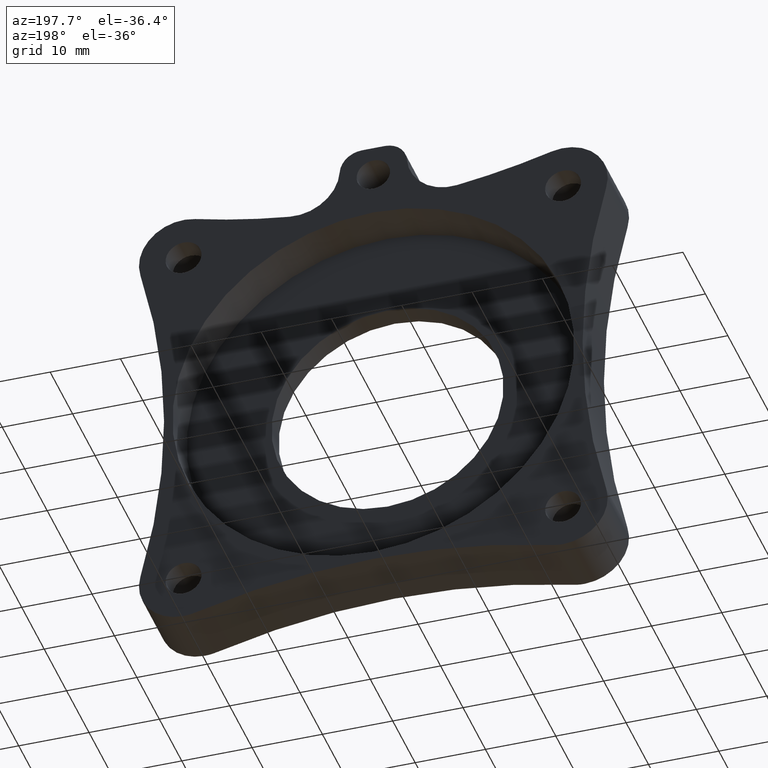
[diagram: clean part render]
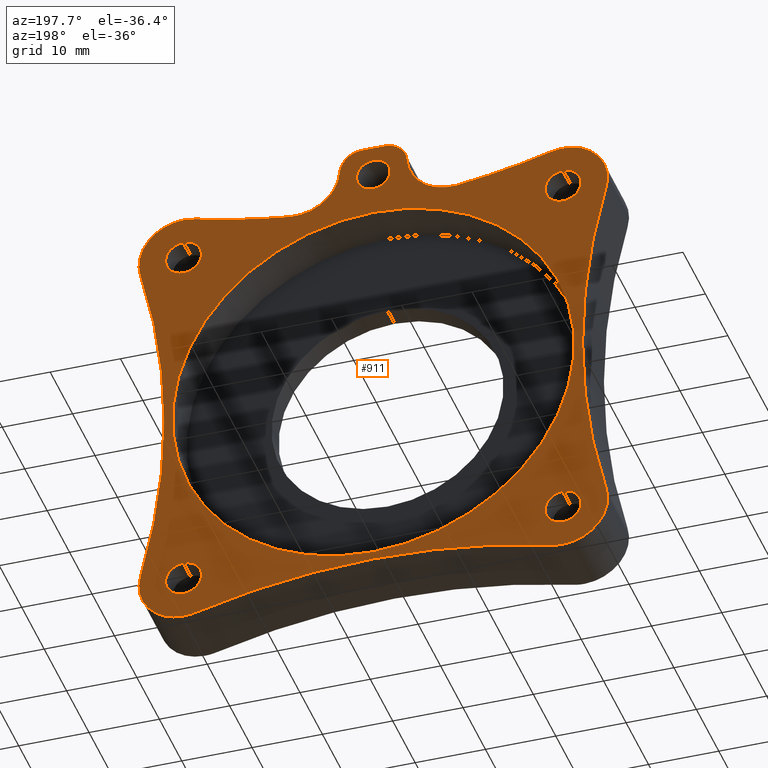
[diagram: same view with one face highlighted and labeled with its STEP entity id]
A machine part, auxiliary view. The second image highlights one B-rep face of the part: STEP entity #911.
In plain terms, the highlighted planar face has unit normal (0, -1, 0).
Its self-contained STEP definition (entity closure, byte-faithful):
#2 = ORIENTED_EDGE ( 'NONE', *, *, #372, .F. ) ;
#6 = ORIENTED_EDGE ( 'NONE', *, *, #493, .T. ) ;
#11 = CARTESIAN_POINT ( 'NONE',  ( 0.2500000000000001700, 0.3750000000000000600, -0.3505000000000000300 ) ) ;
#12 = DIRECTION ( 'NONE',  ( -0.0000000000000000000, 1.000000000000000000, -0.0000000000000000000 ) ) ;
#13 = EDGE_CURVE ( 'NONE', #671, #1193, #1401, .T. ) ;
#21 = ORIENTED_EDGE ( 'NONE', *, *, #1276, .F. ) ;
#33 = CARTESIAN_POINT ( 'NONE',  ( 0.008633090566521018800, 0.3750000000000000600, -0.3151307533391929400 ) ) ;
#34 = EDGE_CURVE ( 'NONE', #1193, #671, #1097, .T. ) ;
#37 = DIRECTION ( 'NONE',  ( 0.0000000000000000000, 0.0000000000000000000, 1.000000000000000000 ) ) ;
#38 = CIRCLE ( 'NONE', #1277, 0.1004999999999999200 ) ;
#52 = DIRECTION ( 'NONE',  ( -0.0000000000000000000, 1.000000000000000000, -0.0000000000000000000 ) ) ;
#55 = CIRCLE ( 'NONE', #333, 0.2500000000000000000 ) ;
#65 = DIRECTION ( 'NONE',  ( 0.0000000000000000000, 1.000000000000000000, 0.0000000000000000000 ) ) ;
#73 = DIRECTION ( 'NONE',  ( 0.0000000000000000000, 0.0000000000000000000, 1.000000000000000000 ) ) ;
#104 = VERTEX_POINT ( 'NONE', #173 ) ;
#108 = EDGE_CURVE ( 'NONE', #220, #1494, #683, .T. ) ;
#116 = EDGE_CURVE ( 'NONE', #1434, #1309, #796, .T. ) ;
#132 = VERTEX_POINT ( 'NONE', #11 ) ;
#133 = CIRCLE ( 'NONE', #847, 1.124749999999999500 ) ;
#134 = DIRECTION ( 'NONE',  ( 0.0000000000000000000, 1.000000000000000000, 0.0000000000000000000 ) ) ;
#139 = LINE ( 'NONE', #577, #1313 ) ;
#143 = DIRECTION ( 'NONE',  ( -0.0000000000000000000, 1.000000000000000000, -0.0000000000000000000 ) ) ;
#147 = CARTESIAN_POINT ( 'NONE',  ( 2.309869246660806800, 0.3750000000000000600, -2.616366909433478900 ) ) ;
#151 = AXIS2_PLACEMENT_3D ( 'NONE', #615, #134, #852 ) ;
#159 = ORIENTED_EDGE ( 'NONE', *, *, #1279, .T. ) ;
#160 = CARTESIAN_POINT ( 'NONE',  ( 0.8750000000000001100, 0.3750000000000000600, 0.1360113368150626900 ) ) ;
#163 = CARTESIAN_POINT ( 'NONE',  ( 1.312500000000000000, 0.3750000000000000600, 0.1562499999999999200 ) ) ;
#167 = ORIENTED_EDGE ( 'NONE', *, *, #1321, .F. ) ;
#170 = VERTEX_POINT ( 'NONE', #1170 ) ;
#173 = CARTESIAN_POINT ( 'NONE',  ( 1.312500000000000000, 0.3750000000000000600, -0.03125000000000000700 ) ) ;
#175 = DIRECTION ( 'NONE',  ( -0.0000000000000000000, 1.000000000000000000, -0.0000000000000000000 ) ) ;
#189 = VERTEX_POINT ( 'NONE', #1462 ) ;
#203 = ORIENTED_EDGE ( 'NONE', *, *, #741, .T. ) ;
#205 = AXIS2_PLACEMENT_3D ( 'NONE', #993, #277, #1102 ) ;
#206 = DIRECTION ( 'NONE',  ( -0.0000000000000000000, -1.000000000000000000, -0.0000000000000000000 ) ) ;
#208 = DIRECTION ( 'NONE',  ( 0.0000000000000000000, 1.000000000000000000, 0.0000000000000000000 ) ) ;
#220 = VERTEX_POINT ( 'NONE', #1007 ) ;
#221 = CIRCLE ( 'NONE', #467, 3.828334525268863400 ) ;
#226 = VERTEX_POINT ( 'NONE', #649 ) ;
#229 = EDGE_CURVE ( 'NONE', #339, #541, #242, .T. ) ;
#235 = ORIENTED_EDGE ( 'NONE', *, *, #1192, .T. ) ;
#242 = CIRCLE ( 'NONE', #952, 3.828334525268863400 ) ;
#247 = DIRECTION ( 'NONE',  ( -0.0000000000000000000, -1.000000000000000000, -0.0000000000000000000 ) ) ;
#248 = DIRECTION ( 'NONE',  ( 0.0000000000000000000, 1.000000000000000000, 0.0000000000000000000 ) ) ;
#257 = CARTESIAN_POINT ( 'NONE',  ( 1.780565895733793500, 0.3750000000000000600, -0.1121130795933015200 ) ) ;
#258 = ORIENTED_EDGE ( 'NONE', *, *, #1261, .F. ) ;
#260 = EDGE_CURVE ( 'NONE', #541, #1147, #581, .T. ) ;
#267 = CARTESIAN_POINT ( 'NONE',  ( 2.375000000000000000, 0.3750000000000000600, -2.375000000000000000 ) ) ;
#273 = FACE_BOUND ( 'NONE', #996, .T. ) ;
#277 = DIRECTION ( 'NONE',  ( 0.0000000000000000000, 1.000000000000000000, 0.0000000000000000000 ) ) ;
#278 = DIRECTION ( 'NONE',  ( 0.0000000000000000000, 0.0000000000000000000, -1.000000000000000000 ) ) ;
#285 = AXIS2_PLACEMENT_3D ( 'NONE', #1263, #572, #1386 ) ;
#288 = DIRECTION ( 'NONE',  ( -0.0000000000000000000, 1.000000000000000000, -0.0000000000000000000 ) ) ;
#289 = ORIENTED_EDGE ( 'NONE', *, *, #13, .F. ) ;
#296 = DIRECTION ( 'NONE',  ( 0.0000000000000000000, -0.0000000000000000000, -1.000000000000000000 ) ) ;
#304 = EDGE_CURVE ( 'NONE', #950, #468, #858, .T. ) ;
#307 = CARTESIAN_POINT ( 'NONE',  ( 2.374999999999999600, 0.3750000000000000600, -2.274500000000000600 ) ) ;
#311 = DIRECTION ( 'NONE',  ( -0.0000000000000000000, 1.000000000000000000, -0.0000000000000000000 ) ) ;
#314 = FACE_BOUND ( 'NONE', #1134, .T. ) ;
#327 = CARTESIAN_POINT ( 'NONE',  ( 0.3151307533391928300, 0.3750000000000000600, -0.008633090566520781200 ) ) ;
#333 = AXIS2_PLACEMENT_3D ( 'NONE', #160, #994, #278 ) ;
#337 = ORIENTED_EDGE ( 'NONE', *, *, #357, .T. ) ;
#339 = VERTEX_POINT ( 'NONE', #750 ) ;
#348 = CIRCLE ( 'NONE', #1242, 0.2500000000000000600 ) ;
#354 = AXIS2_PLACEMENT_3D ( 'NONE', #781, #1015, #296 ) ;
#357 = EDGE_CURVE ( 'NONE', #531, #605, #1091, .T. ) ;
#359 = CARTESIAN_POINT ( 'NONE',  ( 0.3151307533391903800, 0.3750000000000000600, -2.616366909433478900 ) ) ;
#363 = ORIENTED_EDGE ( 'NONE', *, *, #897, .T. ) ;
#369 = CARTESIAN_POINT ( 'NONE',  ( 1.312500000000000000, 0.3750000000000000600, 0.06249999999999995100 ) ) ;
#372 = EDGE_CURVE ( 'NONE', #1309, #1434, #1058, .T. ) ;
#375 = CIRCLE ( 'NONE', #1333, 0.2500000000000000600 ) ;
#400 = CARTESIAN_POINT ( 'NONE',  ( 0.2499999999999999200, 0.3750000000000000600, -2.274500000000000200 ) ) ;
#406 = CARTESIAN_POINT ( 'NONE',  ( 2.375000000000000000, 0.3750000000000000600, -2.625000000000000000 ) ) ;
#409 = CARTESIAN_POINT ( 'NONE',  ( 1.312500000000000000, 0.3750000000000000600, 3.687500000000000400 ) ) ;
#421 = CARTESIAN_POINT ( 'NONE',  ( 2.374999999999999600, 0.3750000000000000600, -2.375000000000000400 ) ) ;
#425 = CARTESIAN_POINT ( 'NONE',  ( 1.312500000000000000, 0.3750000000000000600, -1.312500000000000000 ) ) ;
#426 = VERTEX_POINT ( 'NONE', #359 ) ;
#433 = EDGE_CURVE ( 'NONE', #718, #132, #987, .T. ) ;
#437 = AXIS2_PLACEMENT_3D ( 'NONE', #968, #248, #1082 ) ;
#444 = ORIENTED_EDGE ( 'NONE', *, *, #433, .F. ) ;
#452 = CIRCLE ( 'NONE', #1391, 0.09374999999999995800 ) ;
#453 = CARTESIAN_POINT ( 'NONE',  ( 0.2500000000000001700, 0.3750000000000000600, -0.2500000000000000000 ) ) ;
#458 = ORIENTED_EDGE ( 'NONE', *, *, #229, .T. ) ;
#462 = ORIENTED_EDGE ( 'NONE', *, *, #260, .T. ) ;
#467 = AXIS2_PLACEMENT_3D ( 'NONE', #922, #206, #1034 ) ;
#468 = VERTEX_POINT ( 'NONE', #257 ) ;
#493 = EDGE_CURVE ( 'NONE', #1507, #339, #916, .T. ) ;
#495 = DIRECTION ( 'NONE',  ( 0.0000000000000000000, 0.0000000000000000000, 1.000000000000000000 ) ) ;
#496 = CARTESIAN_POINT ( 'NONE',  ( 1.750000000000000400, 0.3750000000000000600, 0.1360113368150621400 ) ) ;
#519 = CARTESIAN_POINT ( 'NONE',  ( 1.375737769683917500, 0.3750000000000000600, 0.2375000000000001000 ) ) ;
#526 = ORIENTED_EDGE ( 'NONE', *, *, #1460, .T. ) ;
#529 = DIRECTION ( 'NONE',  ( 0.0000000000000000000, 0.0000000000000000000, 1.000000000000000000 ) ) ;
#531 = VERTEX_POINT ( 'NONE', #147 ) ;
#532 = CARTESIAN_POINT ( 'NONE',  ( 0.2499999999999999200, 0.3750000000000000600, -2.375000000000000000 ) ) ;
#541 = VERTEX_POINT ( 'NONE', #33 ) ;
#547 = DIRECTION ( 'NONE',  ( 0.0000000000000000000, 0.0000000000000000000, 1.000000000000000000 ) ) ;
#549 = DIRECTION ( 'NONE',  ( 0.0000000000000000000, 0.0000000000000000000, 1.000000000000000000 ) ) ;
#558 = CIRCLE ( 'NONE', #285, 0.1004999999999999200 ) ;
#560 = AXIS2_PLACEMENT_3D ( 'NONE', #1260, #568, #1381 ) ;
#568 = DIRECTION ( 'NONE',  ( -0.0000000000000000000, -1.000000000000000000, -0.0000000000000000000 ) ) ;
#571 = CARTESIAN_POINT ( 'NONE',  ( 0.2499999999999999200, 0.3750000000000000600, -2.375000000000000000 ) ) ;
#572 = DIRECTION ( 'NONE',  ( 0.0000000000000000000, 1.000000000000000000, 0.0000000000000000000 ) ) ;
#576 = DIRECTION ( 'NONE',  ( 0.0000000000000000000, 0.0000000000000000000, 1.000000000000000000 ) ) ;
#577 = CARTESIAN_POINT ( 'NONE',  ( 1.125000000000000200, 0.3750000000000000600, 0.2375000000000001300 ) ) ;
#581 = CIRCLE ( 'NONE', #1031, 0.2500000000000000600 ) ;
#591 = AXIS2_PLACEMENT_3D ( 'NONE', #646, #1451, #767 ) ;
#592 = FACE_BOUND ( 'NONE', #1388, .T. ) ;
#605 = VERTEX_POINT ( 'NONE', #1183 ) ;
#615 = CARTESIAN_POINT ( 'NONE',  ( 2.375000000000000000, 0.3750000000000000600, -0.2500000000000000000 ) ) ;
#617 = ORIENTED_EDGE ( 'NONE', *, *, #1039, .F. ) ;
#623 = ORIENTED_EDGE ( 'NONE', *, *, #948, .F. ) ;
#626 = DIRECTION ( 'NONE',  ( 0.0000000000000000000, 0.0000000000000000000, -1.000000000000000000 ) ) ;
#627 = DIRECTION ( 'NONE',  ( -0.0000000000000000000, 1.000000000000000000, -0.0000000000000000000 ) ) ;
#631 = ORIENTED_EDGE ( 'NONE', *, *, #1132, .T. ) ;
#639 = VERTEX_POINT ( 'NONE', #970 ) ;
#646 = CARTESIAN_POINT ( 'NONE',  ( 2.375000000000000000, 0.3750000000000000600, -2.375000000000000000 ) ) ;
#649 = CARTESIAN_POINT ( 'NONE',  ( 2.616366909433478900, 0.3750000000000000600, -0.3151307533391926000 ) ) ;
#651 = CARTESIAN_POINT ( 'NONE',  ( 6.312500000000000000, 0.3750000000000000600, -1.312500000000000000 ) ) ;
#653 = CARTESIAN_POINT ( 'NONE',  ( 0.8444341042662069100, 0.3750000000000000600, -0.1121130795933015200 ) ) ;
#671 = VERTEX_POINT ( 'NONE', #860 ) ;
#673 = CARTESIAN_POINT ( 'NONE',  ( 2.374999999999999600, 0.3750000000000000600, -2.475500000000000300 ) ) ;
#674 = CIRCLE ( 'NONE', #1492, 0.1250000000000000000 ) ;
#678 = AXIS2_PLACEMENT_3D ( 'NONE', #651, #1454, #773 ) ;
#679 = CARTESIAN_POINT ( 'NONE',  ( 1.312500000000000000, 0.3750000000000000600, 0.06249999999999995100 ) ) ;
#683 = CIRCLE ( 'NONE', #1435, 0.2500000000000000600 ) ;
#692 = VERTEX_POINT ( 'NONE', #673 ) ;
#693 = AXIS2_PLACEMENT_3D ( 'NONE', #453, #1271, #576 ) ;
#718 = VERTEX_POINT ( 'NONE', #1372 ) ;
#731 = CARTESIAN_POINT ( 'NONE',  ( 0.2499999999999999700, 0.3750000000000000600, -0.2499999999999999700 ) ) ;
#737 = EDGE_CURVE ( 'NONE', #605, #426, #221, .T. ) ;
#741 = EDGE_CURVE ( 'NONE', #1147, #1196, #1423, .T. ) ;
#743 = DIRECTION ( 'NONE',  ( 0.0000000000000000000, 0.0000000000000000000, -1.000000000000000000 ) ) ;
#749 = ORIENTED_EDGE ( 'NONE', *, *, #975, .F. ) ;
#750 = CARTESIAN_POINT ( 'NONE',  ( 0.008633090566520883500, 0.3750000000000000600, -2.309869246660807300 ) ) ;
#755 = DIRECTION ( 'NONE',  ( -0.0000000000000000000, -1.000000000000000000, -0.0000000000000000000 ) ) ;
#767 = DIRECTION ( 'NONE',  ( 0.0000000000000000000, 0.0000000000000000000, -1.000000000000000000 ) ) ;
#770 = CIRCLE ( 'NONE', #678, 3.828334525268862500 ) ;
#773 = DIRECTION ( 'NONE',  ( 0.0000000000000000000, 0.0000000000000000000, 1.000000000000000000 ) ) ;
#776 = CARTESIAN_POINT ( 'NONE',  ( 1.375737769683917500, 0.3750000000000000600, 0.1125000000000001100 ) ) ;
#781 = CARTESIAN_POINT ( 'NONE',  ( 0.0000000000000000000, 0.3750000000000000600, 0.0000000000000000000 ) ) ;
#793 = DIRECTION ( 'NONE',  ( 0.0000000000000000000, 1.000000000000000000, 0.0000000000000000000 ) ) ;
#796 = CIRCLE ( 'NONE', #151, 0.1005000000000001400 ) ;
#800 = DIRECTION ( 'NONE',  ( 0.0000000000000000000, 0.0000000000000000000, 1.000000000000000000 ) ) ;
#812 = ORIENTED_EDGE ( 'NONE', *, *, #737, .T. ) ;
#822 = EDGE_CURVE ( 'NONE', #1383, #1150, #139, .T. ) ;
#823 = VERTEX_POINT ( 'NONE', #1497 ) ;
#825 = AXIS2_PLACEMENT_3D ( 'NONE', #776, #52, #892 ) ;
#835 = EDGE_LOOP ( 'NONE', ( #21, #617 ) ) ;
#847 = AXIS2_PLACEMENT_3D ( 'NONE', #425, #1243, #549 ) ;
#852 = DIRECTION ( 'NONE',  ( 0.0000000000000000000, 0.0000000000000000000, 1.000000000000000000 ) ) ;
#853 = DIRECTION ( 'NONE',  ( 0.0000000000000000000, 0.0000000000000000000, -1.000000000000000000 ) ) ;
#858 = CIRCLE ( 'NONE', #1326, 0.2500000000000000000 ) ;
#860 = CARTESIAN_POINT ( 'NONE',  ( 0.2499999999999999200, 0.3750000000000000600, -2.475499999999999800 ) ) ;
#866 = EDGE_CURVE ( 'NONE', #189, #226, #375, .T. ) ;
#892 = DIRECTION ( 'NONE',  ( 0.0000000000000000000, 0.0000000000000000000, -1.000000000000000000 ) ) ;
#893 = CARTESIAN_POINT ( 'NONE',  ( 1.249262230316082700, 0.3750000000000000600, 0.1125000000000001100 ) ) ;
#897 = EDGE_CURVE ( 'NONE', #823, #1383, #674, .T. ) ;
#911 = ADVANCED_FACE ( 'NONE', ( #314, #1208, #949, #1506, #914, #592, #273 ), #1229, .F. ) ;
#914 = FACE_BOUND ( 'NONE', #1470, .T. ) ;
#916 = CIRCLE ( 'NONE', #1154, 0.2500000000000000600 ) ;
#922 = CARTESIAN_POINT ( 'NONE',  ( 1.312500000000000000, 0.3750000000000000600, -6.312500000000000000 ) ) ;
#926 = DIRECTION ( 'NONE',  ( 0.0000000000000000000, 0.0000000000000000000, 1.000000000000000000 ) ) ;
#948 = EDGE_CURVE ( 'NONE', #1065, #692, #558, .T. ) ;
#949 = FACE_BOUND ( 'NONE', #835, .T. ) ;
#950 = VERTEX_POINT ( 'NONE', #1155 ) ;
#952 = AXIS2_PLACEMENT_3D ( 'NONE', #966, #247, #1080 ) ;
#964 = ORIENTED_EDGE ( 'NONE', *, *, #1059, .F. ) ;
#966 = CARTESIAN_POINT ( 'NONE',  ( -3.687500000000000400, 0.3750000000000000600, -1.312500000000000000 ) ) ;
#968 = CARTESIAN_POINT ( 'NONE',  ( 0.2500000000000001700, 0.3750000000000000600, -0.2500000000000000000 ) ) ;
#970 = CARTESIAN_POINT ( 'NONE',  ( 1.312500000000000200, 0.3750000000000000600, -2.437249999999999700 ) ) ;
#975 = EDGE_CURVE ( 'NONE', #132, #718, #1145, .T. ) ;
#987 = CIRCLE ( 'NONE', #437, 0.1005000000000000600 ) ;
#993 = CARTESIAN_POINT ( 'NONE',  ( 2.375000000000000000, 0.3750000000000000600, -0.2500000000000000000 ) ) ;
#994 = DIRECTION ( 'NONE',  ( 0.0000000000000000000, -1.000000000000000000, 0.0000000000000000000 ) ) ;
#996 = EDGE_LOOP ( 'NONE', ( #444, #749 ) ) ;
#1003 = CARTESIAN_POINT ( 'NONE',  ( 2.375000000000000000, 0.3750000000000000600, -0.2499999999999999700 ) ) ;
#1007 = CARTESIAN_POINT ( 'NONE',  ( 2.616366909433479400, 0.3750000000000000600, -2.309869246660809100 ) ) ;
#1009 = DIRECTION ( 'NONE',  ( 0.0000000000000000000, 0.0000000000000000000, -1.000000000000000000 ) ) ;
#1015 = DIRECTION ( 'NONE',  ( 0.0000000000000000000, -1.000000000000000000, 0.0000000000000000000 ) ) ;
#1026 = CARTESIAN_POINT ( 'NONE',  ( 0.2499999999999999700, 0.3750000000000000600, -2.375000000000000000 ) ) ;
#1031 = AXIS2_PLACEMENT_3D ( 'NONE', #731, #12, #853 ) ;
#1034 = DIRECTION ( 'NONE',  ( 0.0000000000000000000, 0.0000000000000000000, 1.000000000000000000 ) ) ;
#1039 = EDGE_CURVE ( 'NONE', #639, #170, #133, .T. ) ;
#1054 = AXIS2_PLACEMENT_3D ( 'NONE', #409, #1228, #529 ) ;
#1058 = CIRCLE ( 'NONE', #205, 0.1005000000000001400 ) ;
#1059 = EDGE_CURVE ( 'NONE', #1455, #104, #452, .T. ) ;
#1065 = VERTEX_POINT ( 'NONE', #307 ) ;
#1079 = ORIENTED_EDGE ( 'NONE', *, *, #108, .T. ) ;
#1080 = DIRECTION ( 'NONE',  ( 0.0000000000000000000, 0.0000000000000000000, 1.000000000000000000 ) ) ;
#1082 = DIRECTION ( 'NONE',  ( 0.0000000000000000000, 0.0000000000000000000, 1.000000000000000000 ) ) ;
#1091 = CIRCLE ( 'NONE', #1486, 3.828334525268863400 ) ;
#1095 = ORIENTED_EDGE ( 'NONE', *, *, #822, .T. ) ;
#1097 = CIRCLE ( 'NONE', #1281, 0.1004999999999999200 ) ;
#1101 = CARTESIAN_POINT ( 'NONE',  ( 2.375000000000000000, 0.3750000000000000600, -0.3505000000000001400 ) ) ;
#1102 = DIRECTION ( 'NONE',  ( 0.0000000000000000000, 0.0000000000000000000, 1.000000000000000000 ) ) ;
#1112 = DIRECTION ( 'NONE',  ( 2.185478394931410200E-015, 0.0000000000000000000, -1.000000000000000000 ) ) ;
#1115 = ORIENTED_EDGE ( 'NONE', *, *, #116, .F. ) ;
#1121 = CARTESIAN_POINT ( 'NONE',  ( 0.2499999999999999700, 0.3750000000000000600, -2.625000000000000000 ) ) ;
#1132 = EDGE_CURVE ( 'NONE', #1196, #823, #55, .T. ) ;
#1134 = EDGE_LOOP ( 'NONE', ( #964, #167 ) ) ;
#1137 = DIRECTION ( 'NONE',  ( 6.283250385427803600E-015, 0.0000000000000000000, -1.000000000000000000 ) ) ;
#1145 = CIRCLE ( 'NONE', #693, 0.1005000000000000600 ) ;
#1147 = VERTEX_POINT ( 'NONE', #327 ) ;
#1150 = VERTEX_POINT ( 'NONE', #519 ) ;
#1154 = AXIS2_PLACEMENT_3D ( 'NONE', #1314, #627, #1433 ) ;
#1155 = CARTESIAN_POINT ( 'NONE',  ( 1.500491846455945100, 0.3750000000000000600, 0.1203371122716874600 ) ) ;
#1170 = CARTESIAN_POINT ( 'NONE',  ( 1.312500000000000000, 0.3750000000000000600, -0.1877500000000004700 ) ) ;
#1183 = CARTESIAN_POINT ( 'NONE',  ( 1.312500000000000000, 0.3750000000000000600, -2.484165474731136600 ) ) ;
#1192 = EDGE_CURVE ( 'NONE', #1150, #950, #1369, .T. ) ;
#1193 = VERTEX_POINT ( 'NONE', #400 ) ;
#1195 = AXIS2_PLACEMENT_3D ( 'NONE', #1476, #793, #73 ) ;
#1196 = VERTEX_POINT ( 'NONE', #653 ) ;
#1197 = DIRECTION ( 'NONE',  ( 0.0000000000000000000, 1.000000000000000000, 0.0000000000000000000 ) ) ;
#1199 = EDGE_CURVE ( 'NONE', #468, #189, #1323, .T. ) ;
#1202 = AXIS2_PLACEMENT_3D ( 'NONE', #571, #65, #1235 ) ;
#1207 = ORIENTED_EDGE ( 'NONE', *, *, #304, .T. ) ;
#1208 = FACE_OUTER_BOUND ( 'NONE', #1252, .T. ) ;
#1228 = DIRECTION ( 'NONE',  ( -0.0000000000000000000, -1.000000000000000000, -0.0000000000000000000 ) ) ;
#1229 = PLANE ( 'NONE',  #354 ) ;
#1235 = DIRECTION ( 'NONE',  ( 0.0000000000000000000, 0.0000000000000000000, 1.000000000000000000 ) ) ;
#1240 = DIRECTION ( 'NONE',  ( 0.0000000000000000000, 1.000000000000000000, 0.0000000000000000000 ) ) ;
#1242 = AXIS2_PLACEMENT_3D ( 'NONE', #1026, #311, #1137 ) ;
#1243 = DIRECTION ( 'NONE',  ( 0.0000000000000000000, 1.000000000000000000, 0.0000000000000000000 ) ) ;
#1248 = CARTESIAN_POINT ( 'NONE',  ( 2.375000000000000000, 0.3750000000000000600, -0.1494999999999998600 ) ) ;
#1252 = EDGE_LOOP ( 'NONE', ( #1095, #235, #1207, #1300, #1278, #1430, #1079, #526, #337, #812, #159, #6, #458, #462, #203, #631, #363 ) ) ;
#1260 = CARTESIAN_POINT ( 'NONE',  ( 1.312500000000000000, 0.3750000000000000600, 3.687500000000000400 ) ) ;
#1261 = EDGE_CURVE ( 'NONE', #692, #1065, #38, .T. ) ;
#1263 = CARTESIAN_POINT ( 'NONE',  ( 2.374999999999999600, 0.3750000000000000600, -2.375000000000000400 ) ) ;
#1271 = DIRECTION ( 'NONE',  ( 0.0000000000000000000, 1.000000000000000000, 0.0000000000000000000 ) ) ;
#1276 = EDGE_CURVE ( 'NONE', #170, #639, #1286, .T. ) ;
#1277 = AXIS2_PLACEMENT_3D ( 'NONE', #421, #1240, #547 ) ;
#1278 = ORIENTED_EDGE ( 'NONE', *, *, #866, .T. ) ;
#1279 = EDGE_CURVE ( 'NONE', #426, #1507, #348, .T. ) ;
#1281 = AXIS2_PLACEMENT_3D ( 'NONE', #532, #208, #926 ) ;
#1286 = CIRCLE ( 'NONE', #1195, 1.124749999999999500 ) ;
#1300 = ORIENTED_EDGE ( 'NONE', *, *, #1199, .T. ) ;
#1309 = VERTEX_POINT ( 'NONE', #1248 ) ;
#1312 = DIRECTION ( 'NONE',  ( 0.0000000000000000000, -1.000000000000000000, 0.0000000000000000000 ) ) ;
#1313 = VECTOR ( 'NONE', #1387, 39.37007874015748100 ) ;
#1314 = CARTESIAN_POINT ( 'NONE',  ( 0.2499999999999999700, 0.3750000000000000600, -2.375000000000000000 ) ) ;
#1318 = AXIS2_PLACEMENT_3D ( 'NONE', #369, #1197, #495 ) ;
#1321 = EDGE_CURVE ( 'NONE', #104, #1455, #1512, .T. ) ;
#1323 = CIRCLE ( 'NONE', #1054, 3.828334525268863400 ) ;
#1325 = CARTESIAN_POINT ( 'NONE',  ( 1.249262230316082700, 0.3750000000000000600, 0.2375000000000001300 ) ) ;
#1326 = AXIS2_PLACEMENT_3D ( 'NONE', #496, #1312, #626 ) ;
#1330 = ORIENTED_EDGE ( 'NONE', *, *, #34, .F. ) ;
#1333 = AXIS2_PLACEMENT_3D ( 'NONE', #1003, #288, #1112 ) ;
#1369 = CIRCLE ( 'NONE', #825, 0.1250000000000000000 ) ;
#1372 = CARTESIAN_POINT ( 'NONE',  ( 0.2500000000000001700, 0.3750000000000000600, -0.1494999999999999400 ) ) ;
#1381 = DIRECTION ( 'NONE',  ( 0.0000000000000000000, 0.0000000000000000000, 1.000000000000000000 ) ) ;
#1383 = VERTEX_POINT ( 'NONE', #1325 ) ;
#1386 = DIRECTION ( 'NONE',  ( 0.0000000000000000000, 0.0000000000000000000, 1.000000000000000000 ) ) ;
#1387 = DIRECTION ( 'NONE',  ( 1.000000000000000000, 0.0000000000000000000, -9.106159978880871200E-017 ) ) ;
#1388 = EDGE_LOOP ( 'NONE', ( #1330, #289 ) ) ;
#1391 = AXIS2_PLACEMENT_3D ( 'NONE', #679, #1483, #800 ) ;
#1401 = CIRCLE ( 'NONE', #1202, 0.1004999999999999200 ) ;
#1423 = CIRCLE ( 'NONE', #560, 3.828334525268863400 ) ;
#1430 = ORIENTED_EDGE ( 'NONE', *, *, #1478, .T. ) ;
#1433 = DIRECTION ( 'NONE',  ( 0.0000000000000000000, 0.0000000000000000000, -1.000000000000000000 ) ) ;
#1434 = VERTEX_POINT ( 'NONE', #1101 ) ;
#1435 = AXIS2_PLACEMENT_3D ( 'NONE', #267, #143, #743 ) ;
#1439 = EDGE_LOOP ( 'NONE', ( #2, #1115 ) ) ;
#1440 = CARTESIAN_POINT ( 'NONE',  ( 1.312500000000000000, 0.3750000000000000600, -6.312500000000000000 ) ) ;
#1448 = CIRCLE ( 'NONE', #591, 0.2500000000000000600 ) ;
#1451 = DIRECTION ( 'NONE',  ( -0.0000000000000000000, 1.000000000000000000, -0.0000000000000000000 ) ) ;
#1454 = DIRECTION ( 'NONE',  ( -0.0000000000000000000, -1.000000000000000000, -0.0000000000000000000 ) ) ;
#1455 = VERTEX_POINT ( 'NONE', #163 ) ;
#1460 = EDGE_CURVE ( 'NONE', #1494, #531, #1448, .T. ) ;
#1462 = CARTESIAN_POINT ( 'NONE',  ( 2.309869246660807700, 0.3750000000000000600, -0.008633090566521600000 ) ) ;
#1470 = EDGE_LOOP ( 'NONE', ( #623, #258 ) ) ;
#1476 = CARTESIAN_POINT ( 'NONE',  ( 1.312500000000000000, 0.3750000000000000600, -1.312500000000000000 ) ) ;
#1478 = EDGE_CURVE ( 'NONE', #226, #220, #770, .T. ) ;
#1483 = DIRECTION ( 'NONE',  ( 0.0000000000000000000, 1.000000000000000000, 0.0000000000000000000 ) ) ;
#1486 = AXIS2_PLACEMENT_3D ( 'NONE', #1440, #755, #37 ) ;
#1492 = AXIS2_PLACEMENT_3D ( 'NONE', #893, #175, #1009 ) ;
#1494 = VERTEX_POINT ( 'NONE', #406 ) ;
#1497 = CARTESIAN_POINT ( 'NONE',  ( 1.124508153544055500, 0.3750000000000000600, 0.1203371122716876300 ) ) ;
#1506 = FACE_BOUND ( 'NONE', #1439, .T. ) ;
#1507 = VERTEX_POINT ( 'NONE', #1121 ) ;
#1512 = CIRCLE ( 'NONE', #1318, 0.09374999999999995800 ) ;